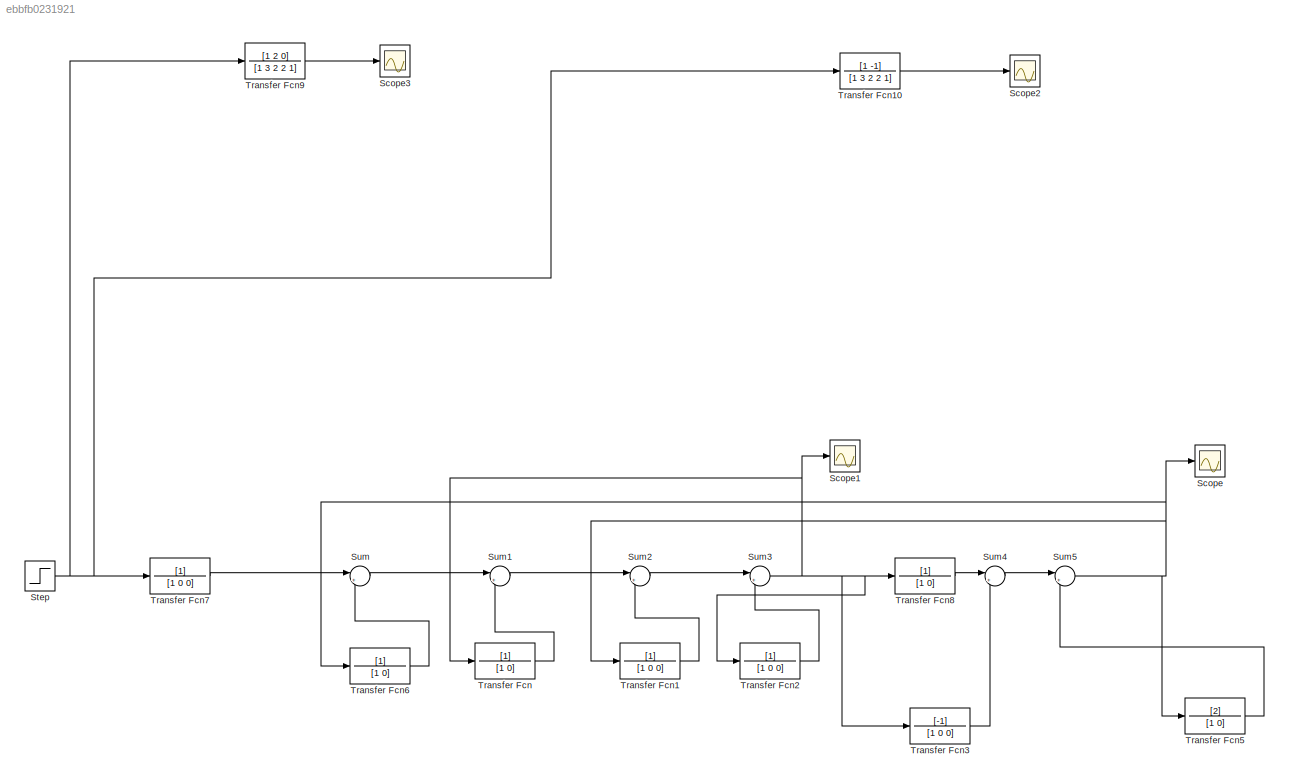
MODEL slx_ebbfb0231921
KIND model
CONFIG AbsTol = auto
CONFIG EnableMultiTasking = off
CONFIG FixedStep = auto
CONFIG MaxStep = auto
CONFIG MinStep = auto
CONFIG RelTol = 1e-3
CONFIG SampleTimeConstraint = Unconstrained
CONFIG SolverName = VariableStepAuto
CONFIG StartTime = 0.0
CONFIG StopTime = 10.0
BLOCK [Scope] Scope
  Floating = off
  NumInputPorts = 1
  ScopeSpecificationString = Simulink.scopes.TimeScopeBlockCfg('CurrentConfiguration', extmgr.ConfigurationSet(extmgr.Configuration('Core','General UI',true),extmgr.Configuration('Core','Source UI',true),extmgr.Configuration('Sources','WiredSimulink',true),extmgr.Configuration('Visuals','Time Domain',true,'SerializedDisplays',{struct('MinYLimReal','-2.01544','MaxYLimReal','0.35387','YLabelReal','','MinYLimMag','0.00000','MaxY...<+1442ch>
BLOCK [Scope] Scope1
  Floating = off
  NumInputPorts = 1
  ScopeSpecificationString = Simulink.scopes.TimeScopeBlockCfg('CurrentConfiguration', extmgr.ConfigurationSet(extmgr.Configuration('Core','General UI',true),extmgr.Configuration('Core','Source UI',true),extmgr.Configuration('Sources','WiredSimulink',true,'DataLoggingVariableName','ScopeData1'),extmgr.Configuration('Visuals','Time Domain',true,'SerializedDisplays',{struct('MinYLimReal','-1.44208','MaxYLimReal','1.47037','YLab...<+1481ch>
BLOCK [Scope] Scope2
  Floating = off
  NumInputPorts = 1
  ScopeSpecificationString = Simulink.scopes.TimeScopeBlockCfg('CurrentConfiguration', extmgr.ConfigurationSet(extmgr.Configuration('Core','General UI',true),extmgr.Configuration('Core','Source UI',true),extmgr.Configuration('Sources','WiredSimulink',true,'DataLoggingVariableName','ScopeData2'),extmgr.Configuration('Visuals','Time Domain',true,'SerializedDisplays',{struct('MinYLimReal','-2.01544','MaxYLimReal','0.35387','YLab...<+1491ch>
BLOCK [Scope] Scope3
  Floating = off
  NumInputPorts = 1
  ScopeSpecificationString = Simulink.scopes.TimeScopeBlockCfg('CurrentConfiguration', extmgr.ConfigurationSet(extmgr.Configuration('Core','General UI',true),extmgr.Configuration('Core','Source UI',true),extmgr.Configuration('Sources','WiredSimulink',true,'DataLoggingVariableName','ScopeData3'),extmgr.Configuration('Visuals','Time Domain',true,'SerializedDisplays',{struct('MinYLimReal','-1.44208','MaxYLimReal','1.47037','YLab...<+1490ch>
BLOCK [Step] Step
  SampleTime = 0
BLOCK [Sum] Sum
  Inputs = |++
BLOCK [Sum] Sum1
  Inputs = |+-
BLOCK [Sum] Sum2
  Inputs = |++
BLOCK [Sum] Sum3
  Inputs = |+-
BLOCK [Sum] Sum4
  Inputs = |++
BLOCK [Sum] Sum5
  Inputs = |+-
BLOCK [TransferFcn] Transfer Fcn
  Denominator = [1 0]
BLOCK [TransferFcn] Transfer Fcn1
  Denominator = [1 0 0]
BLOCK [TransferFcn] Transfer Fcn10
  Denominator = [1 3 2 2 1]
  Numerator = [1 -1]
BLOCK [TransferFcn] Transfer Fcn2
  Denominator = [1 0 0]
BLOCK [TransferFcn] Transfer Fcn3
  Denominator = [1 0 0]
  Numerator = [-1]
BLOCK [TransferFcn] Transfer Fcn5
  Denominator = [1 0]
  Numerator = [2]
BLOCK [TransferFcn] Transfer Fcn6
  Denominator = [1 0]
BLOCK [TransferFcn] Transfer Fcn7
  Denominator = [1 0 0]
BLOCK [TransferFcn] Transfer Fcn8
  Denominator = [1 0]
BLOCK [TransferFcn] Transfer Fcn9
  Denominator = [1 3 2 2 1]
  Numerator = [1 2 0]
NET Step:1 -> Transfer Fcn10:1, Transfer Fcn7:1, Transfer Fcn9:1
LINE Sum1:1 -> Sum2:1
LINE Sum2:1 -> Sum3:1
NET Sum3:1 -> Scope1:1, Transfer Fcn2:1, Transfer Fcn3:1, Transfer Fcn8:1, Transfer Fcn:1
LINE Sum4:1 -> Sum5:1
NET Sum5:1 -> Scope:1, Transfer Fcn1:1, Transfer Fcn5:1, Transfer Fcn6:1
LINE Sum:1 -> Sum1:1
LINE Transfer Fcn10:1 -> Scope2:1
LINE Transfer Fcn1:1 -> Sum2:2
LINE Transfer Fcn2:1 -> Sum3:2
LINE Transfer Fcn3:1 -> Sum4:2
LINE Transfer Fcn5:1 -> Sum5:2
LINE Transfer Fcn6:1 -> Sum:2
LINE Transfer Fcn7:1 -> Sum:1
LINE Transfer Fcn8:1 -> Sum4:1
LINE Transfer Fcn9:1 -> Scope3:1
LINE Transfer Fcn:1 -> Sum1:2
note: NET lines group one-source signal fan-out (src -> all destinations, sorted); 1:1 wires keep LINE
